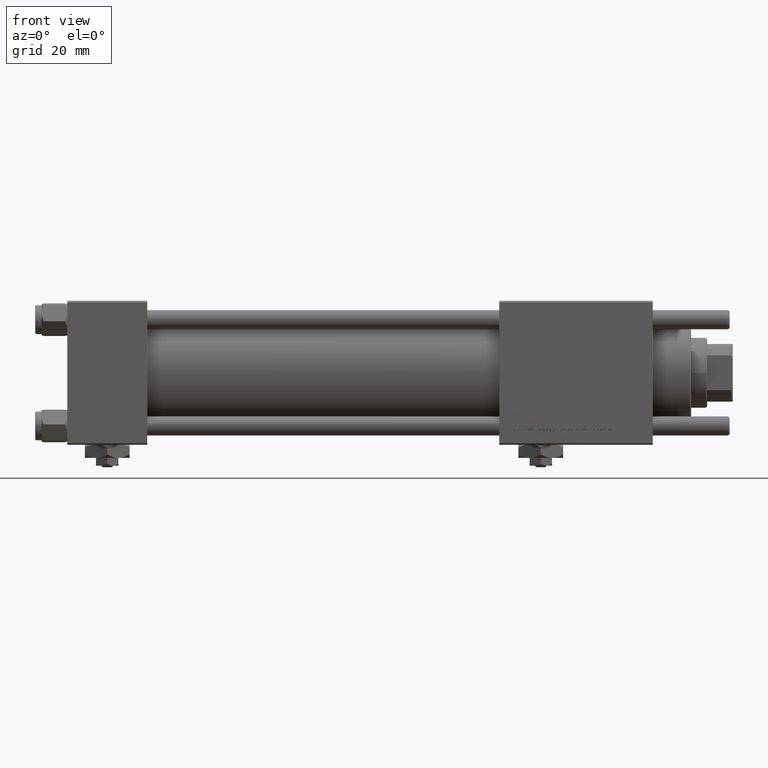
[diagram: clean part render]
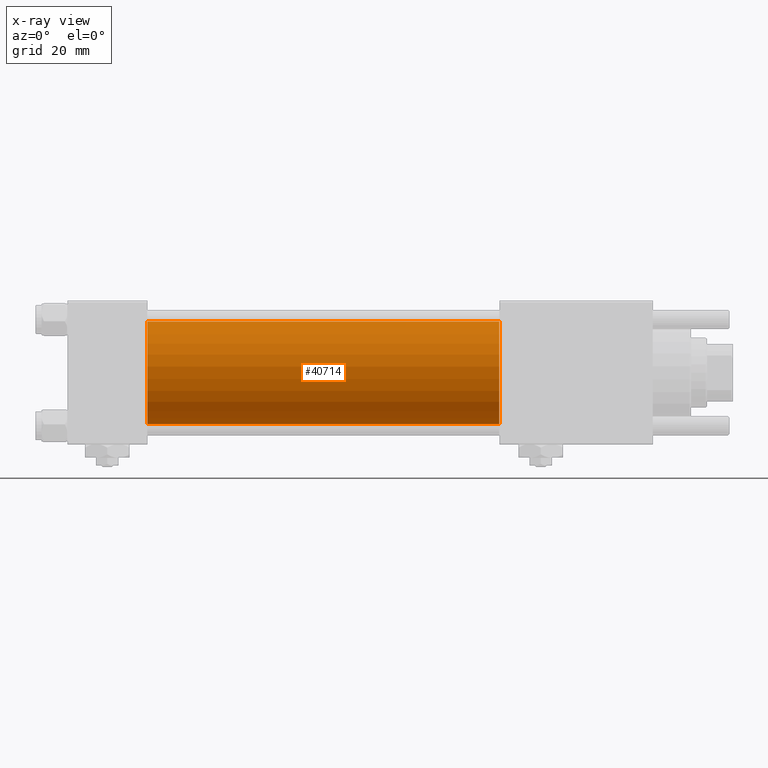
[diagram: x-ray — body ghosted, one internal face saturated and labeled with its STEP entity id]
A machine part, front view, then the same camera in x-ray: the body is ghosted and one INTERNAL B-rep face — a face not visible from any outside direction — is saturated and labeled: STEP entity #40714.
In plain terms, the highlighted cylindrical surface (partial cylindrical patch) has radius 16 mm, axis along (-1, -0, -0).
Its self-contained STEP definition (entity closure, byte-faithful):
#3421 = VERTEX_POINT ( 'NONE', #35183 ) ;
#5706 = VECTOR ( 'NONE', #40883, 1000.000000000000000 ) ;
#6313 = CARTESIAN_POINT ( 'NONE',  ( 135.0000000000000000, -6.426503353294456087E-16, -16.00000000000000000 ) ) ;
#6660 = DIRECTION ( 'NONE',  ( 0.000000000000000000, 0.000000000000000000, -1.000000000000000000 ) ) ;
#7187 = CARTESIAN_POINT ( 'NONE',  ( 135.0000000000000000, -2.602085213965210642E-15, 0.000000000000000000 ) ) ;
#7485 = DIRECTION ( 'NONE',  ( 0.000000000000000000, 0.000000000000000000, 1.000000000000000000 ) ) ;
#8094 = FACE_OUTER_BOUND ( 'NONE', #40317, .T. ) ;
#11454 = LINE ( 'NONE', #6313, #17565 ) ;
#12793 = CIRCLE ( 'NONE', #30286, 16.00000000000000000 ) ;
#16253 = CARTESIAN_POINT ( 'NONE',  ( 135.0000000000000000, -6.426503353294456087E-16, -16.00000000000000000 ) ) ;
#17028 = CARTESIAN_POINT ( 'NONE',  ( 25.00000000000000000, -2.602085213965210642E-15, 0.000000000000000000 ) ) ;
#17433 = VERTEX_POINT ( 'NONE', #48898 ) ;
#17565 = VECTOR ( 'NONE', #25134, 1000.000000000000000 ) ;
#17804 = LINE ( 'NONE', #31490, #5706 ) ;
#21589 = DIRECTION ( 'NONE',  ( 0.000000000000000000, 0.000000000000000000, -1.000000000000000000 ) ) ;
#25134 = DIRECTION ( 'NONE',  ( -1.000000000000000000, -0.000000000000000000, -0.000000000000000000 ) ) ;
#25280 = AXIS2_PLACEMENT_3D ( 'NONE', #7187, #35134, #7485 ) ;
#25664 = AXIS2_PLACEMENT_3D ( 'NONE', #17028, #27052, #21589 ) ;
#27052 = DIRECTION ( 'NONE',  ( 1.000000000000000000, 0.000000000000000000, 0.000000000000000000 ) ) ;
#29095 = ORIENTED_EDGE ( 'NONE', *, *, #44579, .T. ) ;
#29097 = CARTESIAN_POINT ( 'NONE',  ( 25.00000000000000000, -2.602085213965210642E-15, 16.00000000000000000 ) ) ;
#30286 = AXIS2_PLACEMENT_3D ( 'NONE', #35199, #48260, #6660 ) ;
#30815 = EDGE_CURVE ( 'NONE', #17433, #45703, #17804, .T. ) ;
#31490 = CARTESIAN_POINT ( 'NONE',  ( 135.0000000000000000, -2.602085213965210642E-15, 16.00000000000000000 ) ) ;
#33612 = VERTEX_POINT ( 'NONE', #16253 ) ;
#35134 = DIRECTION ( 'NONE',  ( -1.000000000000000000, -0.000000000000000000, -0.000000000000000000 ) ) ;
#35183 = CARTESIAN_POINT ( 'NONE',  ( 25.00000000000000000, -6.426503353294456087E-16, -16.00000000000000000 ) ) ;
#35199 = CARTESIAN_POINT ( 'NONE',  ( 135.0000000000000000, -2.602085213965210642E-15, 0.000000000000000000 ) ) ;
#36101 = ORIENTED_EDGE ( 'NONE', *, *, #56777, .F. ) ;
#36361 = ORIENTED_EDGE ( 'NONE', *, *, #37588, .T. ) ;
#37235 = ORIENTED_EDGE ( 'NONE', *, *, #30815, .F. ) ;
#37588 = EDGE_CURVE ( 'NONE', #33612, #3421, #11454, .T. ) ;
#40317 = EDGE_LOOP ( 'NONE', ( #29095, #36361, #36101, #37235 ) ) ;
#40714 = ADVANCED_FACE ( 'NONE', ( #8094 ), #44840, .F. ) ;
#40883 = DIRECTION ( 'NONE',  ( -1.000000000000000000, -0.000000000000000000, -0.000000000000000000 ) ) ;
#44082 = CIRCLE ( 'NONE', #25664, 16.00000000000000000 ) ;
#44579 = EDGE_CURVE ( 'NONE', #17433, #33612, #12793, .T. ) ;
#44840 = CYLINDRICAL_SURFACE ( 'NONE', #25280, 16.00000000000000000 ) ;
#45703 = VERTEX_POINT ( 'NONE', #29097 ) ;
#48260 = DIRECTION ( 'NONE',  ( 1.000000000000000000, 0.000000000000000000, 0.000000000000000000 ) ) ;
#48898 = CARTESIAN_POINT ( 'NONE',  ( 135.0000000000000000, -2.602085213965210642E-15, 16.00000000000000000 ) ) ;
#56777 = EDGE_CURVE ( 'NONE', #45703, #3421, #44082, .T. ) ;